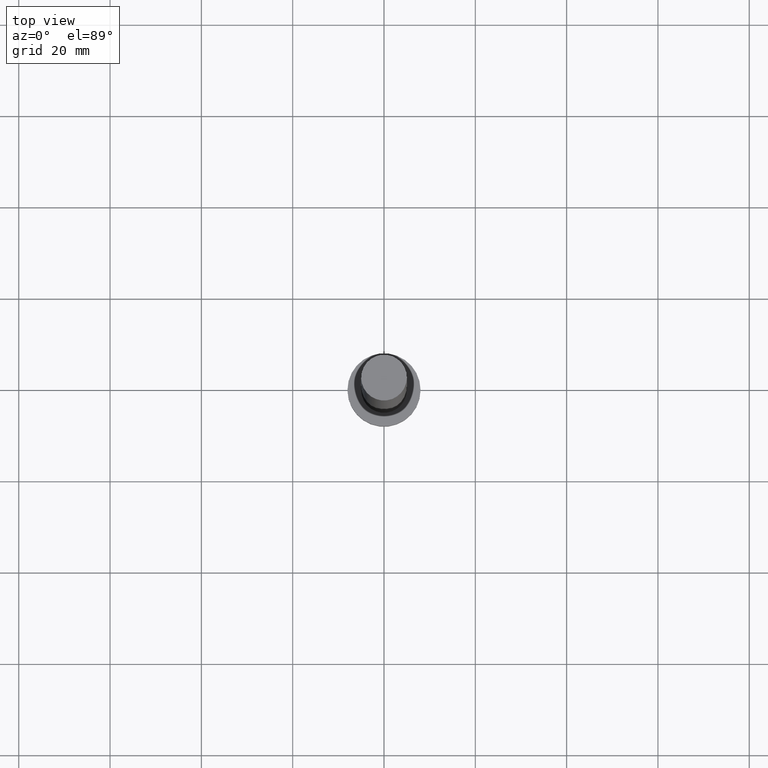
[diagram: clean part render]
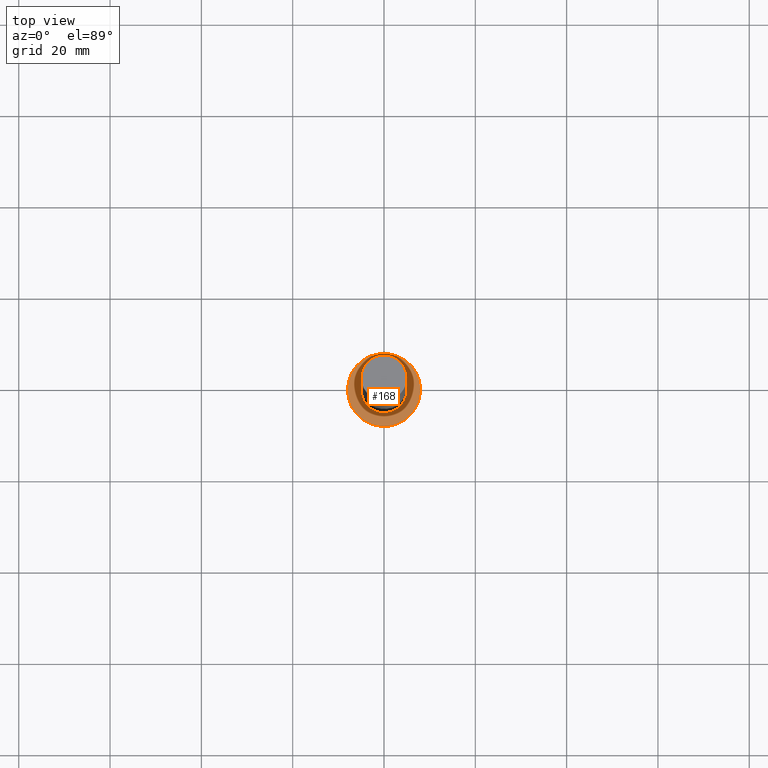
[diagram: same view with one face highlighted and labeled with its STEP entity id]
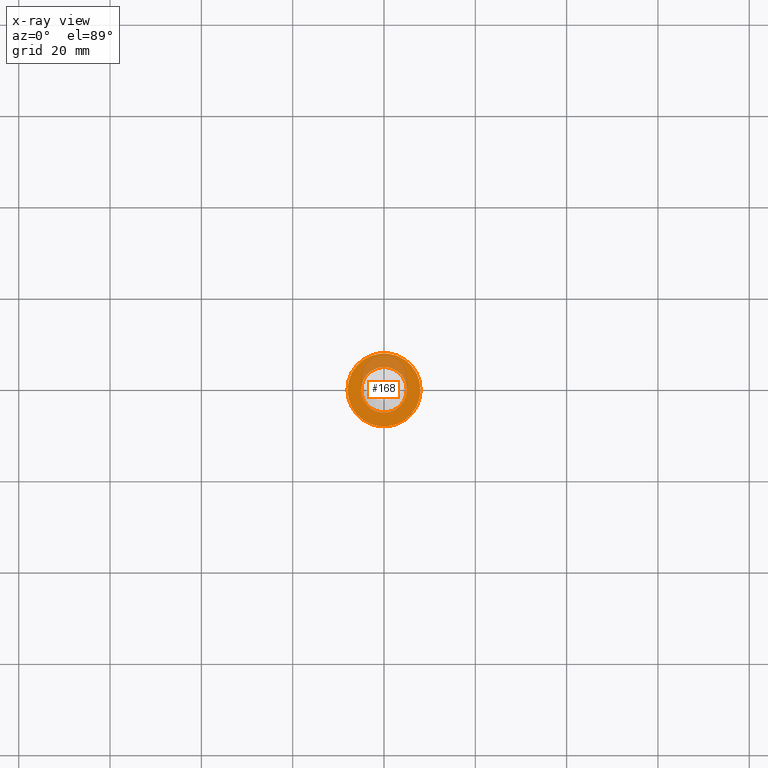
[diagram: x-ray of the same camera — body ghosted, the highlighted face saturated]
A machine part, top view. The second image highlights one B-rep face of the part: STEP entity #168.
The next image is the same camera in x-ray: the body ghosted, the highlighted face saturated — about 22% of this face is hidden behind the body in this view.
In plain terms, the highlighted planar face has unit normal (0, 0, 1).
Its self-contained STEP definition (entity closure, byte-faithful):
#5 = VERTEX_POINT ( 'NONE', #51 ) ;
#8 = VERTEX_POINT ( 'NONE', #154 ) ;
#18 = DIRECTION ( 'NONE',  ( 1.000000000000000000, 0.000000000000000000, 0.000000000000000000 ) ) ;
#19 = CIRCLE ( 'NONE', #230, 5.000000000000000000 ) ;
#30 = VERTEX_POINT ( 'NONE', #157 ) ;
#31 = CARTESIAN_POINT ( 'NONE',  ( 8.000000000000000000, 9.797174393178825657E-16, 5.000000000000000000 ) ) ;
#32 = ORIENTED_EDGE ( 'NONE', *, *, #85, .F. ) ;
#35 = CIRCLE ( 'NONE', #252, 8.000000000000000000 ) ;
#41 = DIRECTION ( 'NONE',  ( 1.000000000000000000, 0.000000000000000000, -0.000000000000000000 ) ) ;
#51 = CARTESIAN_POINT ( 'NONE',  ( -5.000000000000000000, 0.000000000000000000, 5.000000000000000000 ) ) ;
#58 = CARTESIAN_POINT ( 'NONE',  ( 0.000000000000000000, 0.000000000000000000, 5.000000000000000000 ) ) ;
#64 = ORIENTED_EDGE ( 'NONE', *, *, #178, .T. ) ;
#73 = CARTESIAN_POINT ( 'NONE',  ( 0.000000000000000000, 0.000000000000000000, 5.000000000000000000 ) ) ;
#79 = CIRCLE ( 'NONE', #225, 5.000000000000000000 ) ;
#81 = DIRECTION ( 'NONE',  ( 1.000000000000000000, 0.000000000000000000, 0.000000000000000000 ) ) ;
#82 = DIRECTION ( 'NONE',  ( 0.000000000000000000, 0.000000000000000000, 1.000000000000000000 ) ) ;
#85 = EDGE_CURVE ( 'NONE', #5, #30, #19, .T. ) ;
#91 = VERTEX_POINT ( 'NONE', #31 ) ;
#96 = FACE_OUTER_BOUND ( 'NONE', #187, .T. ) ;
#97 = CIRCLE ( 'NONE', #247, 8.000000000000000000 ) ;
#108 = ORIENTED_EDGE ( 'NONE', *, *, #115, .F. ) ;
#113 = AXIS2_PLACEMENT_3D ( 'NONE', #196, #82, #41 ) ;
#115 = EDGE_CURVE ( 'NONE', #30, #5, #79, .T. ) ;
#116 = DIRECTION ( 'NONE',  ( 0.000000000000000000, 0.000000000000000000, 1.000000000000000000 ) ) ;
#141 = DIRECTION ( 'NONE',  ( 0.000000000000000000, 0.000000000000000000, 1.000000000000000000 ) ) ;
#152 = DIRECTION ( 'NONE',  ( 0.000000000000000000, 0.000000000000000000, 1.000000000000000000 ) ) ;
#154 = CARTESIAN_POINT ( 'NONE',  ( -8.000000000000000000, 0.000000000000000000, 5.000000000000000000 ) ) ;
#157 = CARTESIAN_POINT ( 'NONE',  ( 5.000000000000000000, 6.123233995736766282E-16, 5.000000000000000000 ) ) ;
#168 = ADVANCED_FACE ( 'NONE', ( #198, #96 ), #180, .T. ) ;
#177 = DIRECTION ( 'NONE',  ( 0.000000000000000000, 0.000000000000000000, 1.000000000000000000 ) ) ;
#178 = EDGE_CURVE ( 'NONE', #8, #91, #35, .T. ) ;
#179 = CARTESIAN_POINT ( 'NONE',  ( 0.000000000000000000, 0.000000000000000000, 5.000000000000000000 ) ) ;
#180 = PLANE ( 'NONE',  #113 ) ;
#187 = EDGE_LOOP ( 'NONE', ( #64, #192 ) ) ;
#191 = EDGE_CURVE ( 'NONE', #91, #8, #97, .T. ) ;
#192 = ORIENTED_EDGE ( 'NONE', *, *, #191, .T. ) ;
#196 = CARTESIAN_POINT ( 'NONE',  ( 0.000000000000000000, 0.000000000000000000, 5.000000000000000000 ) ) ;
#198 = FACE_BOUND ( 'NONE', #227, .T. ) ;
#207 = DIRECTION ( 'NONE',  ( 1.000000000000000000, 0.000000000000000000, 0.000000000000000000 ) ) ;
#225 = AXIS2_PLACEMENT_3D ( 'NONE', #58, #177, #251 ) ;
#227 = EDGE_LOOP ( 'NONE', ( #32, #108 ) ) ;
#230 = AXIS2_PLACEMENT_3D ( 'NONE', #73, #152, #207 ) ;
#247 = AXIS2_PLACEMENT_3D ( 'NONE', #248, #116, #18 ) ;
#248 = CARTESIAN_POINT ( 'NONE',  ( 0.000000000000000000, 0.000000000000000000, 5.000000000000000000 ) ) ;
#251 = DIRECTION ( 'NONE',  ( 1.000000000000000000, 0.000000000000000000, 0.000000000000000000 ) ) ;
#252 = AXIS2_PLACEMENT_3D ( 'NONE', #179, #141, #81 ) ;